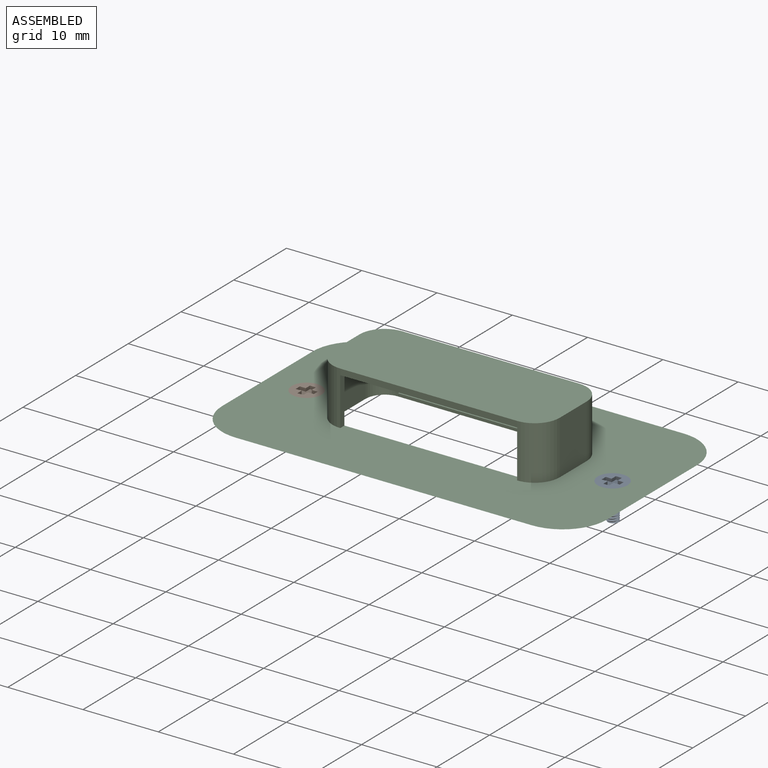
[diagram: assembled view]
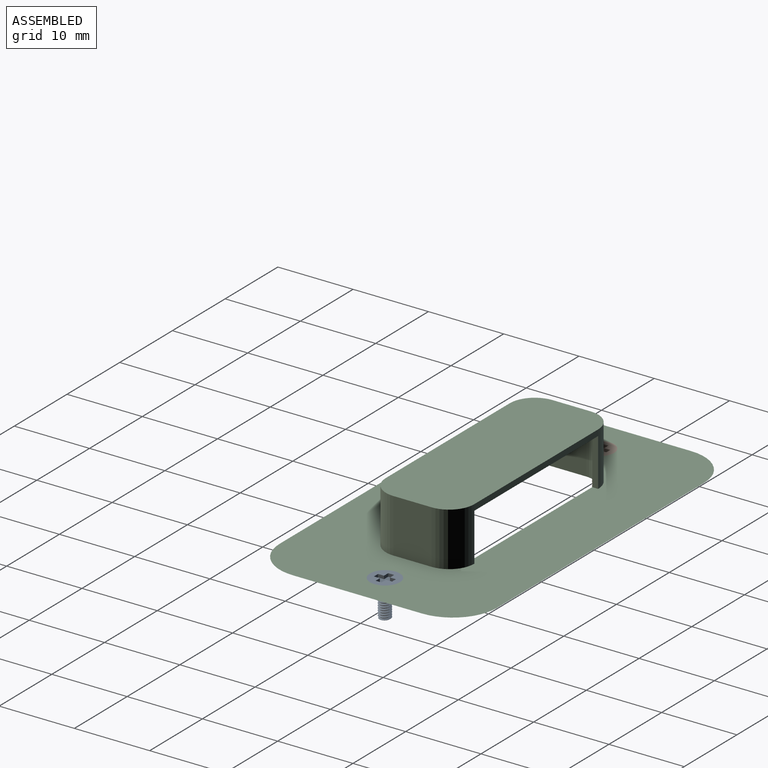
[diagram: assembled view, second angle]
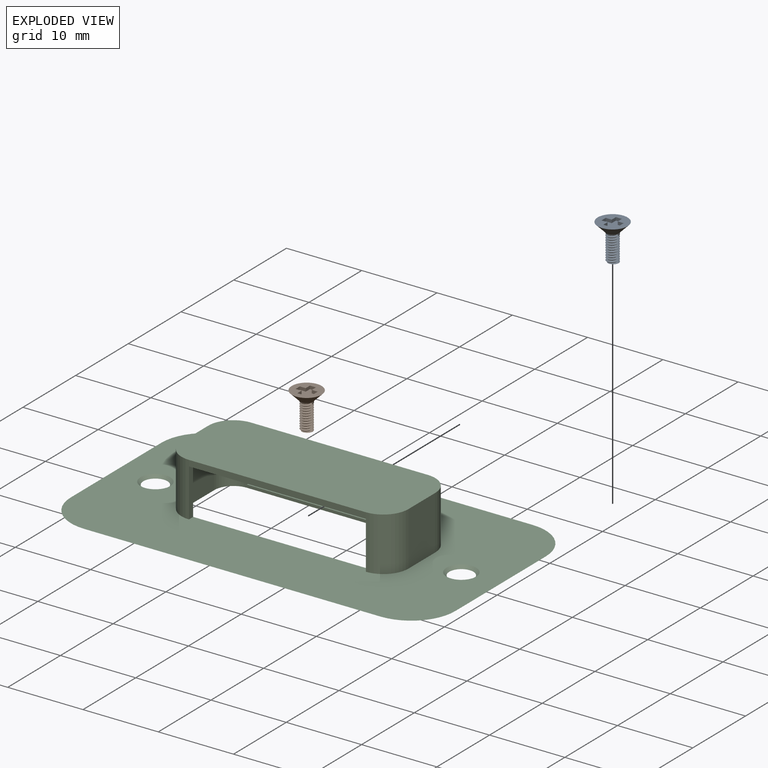
[diagram: exploded view]
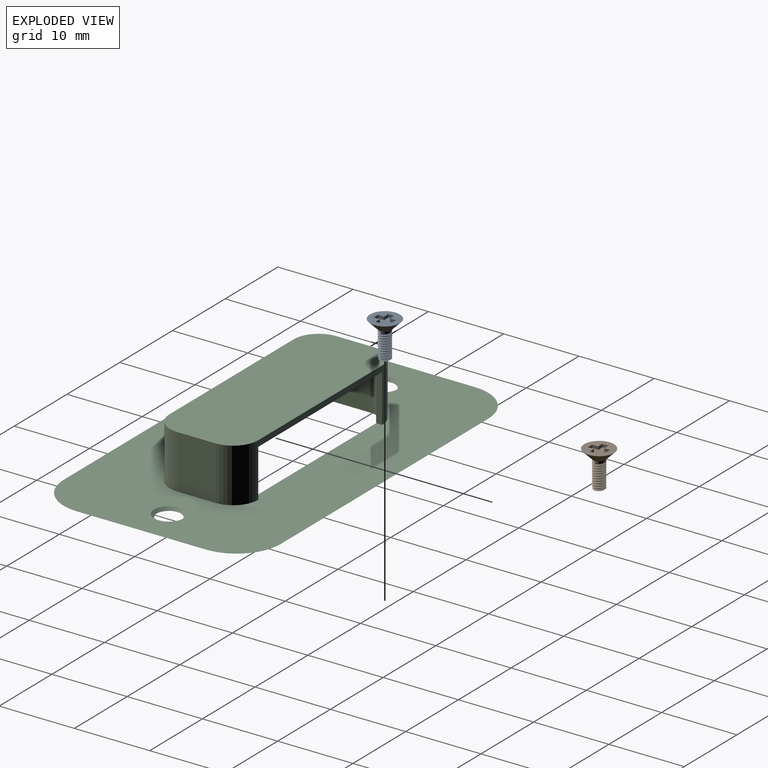
[diagram: exploded view, second angle]
ASSEMBLY  parts=3 mates=2
PART A: 21 faces, bbox 4.1x4.1x5.1 mm
  f0: plane 3.97x3.97mm, normal (0,0,1), area 9.2mm2, adj f1,f8,f9,f10,f11,f12,f13,f14
  f1: cone r=0.79mm half-angle=45deg, axis (0,0,1), area 14.7mm2, adj f0,f2
  f2: cylinder r=0.79mm len=1.59mm, axis (0,0,1), area 0.7mm2, adj f1,f5,f6
  f3: bspline ~3.72x1.83mm, area 12.7mm2, adj f4,f5,f6,f7
  f4: bspline ~3.57x1.83mm, area 12.1mm2, adj f3,f5,f7
  f5: plane 0.3x0.2mm, normal (0,-1,0), area 0mm2, adj f2,f3,f4,f6
  f6: bspline ~1.59x1.58mm, area 0mm2, adj f2,f3,f5
  f7: plane 1.55x1.55mm, normal (0,0,-1), area 1.5mm2, adj f3,f4
  f8: plane 0.79x0.42mm, normal (0,-1,0), area 0.3mm2, adj f0,f9,f19,f20
  f9: plane 0.79x0.42mm, normal (1,0,0), area 0.3mm2, adj f0,f8,f10,f20
  f10: plane 0.79x0.42mm, normal (0,-1,0), area 0.3mm2, adj f0,f9,f11,f20
  f11: plane 0.79x0.42mm, normal (1,0,0), area 0.3mm2, adj f0,f10,f12,f20
  f12: plane 0.79x0.42mm, normal (0,1,0), area 0.3mm2, adj f0,f11,f13,f20
  f13: plane 0.79x0.42mm, normal (1,0,0), area 0.3mm2, adj f0,f12,f14,f20
  f14: plane 0.79x0.42mm, normal (0,1,0), area 0.3mm2, adj f0,f13,f15,f20
  f15: plane 0.79x0.42mm, normal (-1,0,0), area 0.3mm2, adj f0,f14,f16,f20
  f16: plane 0.79x0.42mm, normal (0,1,0), area 0.3mm2, adj f0,f15,f17,f20
  f17: plane 0.79x0.42mm, normal (-1,0,0), area 0.3mm2, adj f0,f16,f18,f20
  f18: plane 0.79x0.42mm, normal (0,-1,0), area 0.3mm2, adj f0,f17,f19,f20
  f19: plane 0.79x0.42mm, normal (-1,0,0), area 0.3mm2, adj f0,f8,f18,f20
  f20: plane 2.38x2.38mm, normal (0,0,1), area 3.2mm2, adj f8,f9,f10,f11,f12,f13,f14,f15
PART B: same geometry as A
PART C: 34 faces, bbox 51.1x28.8x7.5 mm
  f0: plane 51.05x28.83mm, normal (0,0,1), area 1110.4mm2, adj f3,f9,f10,f11,f12,f13,f14,f15
  f1: plane 6.73x5.08mm, normal (1,0,0), area 34.2mm2, adj f2,f6,f7,f28
  f2: cylinder r=2.54mm len=6.73mm, axis (0,0,-1), area 26.9mm2, adj f1,f3,f7,f24,f28
  f3: plane 23.5x0.38mm, normal (0,-1,0), area 9mm2, adj f0,f2,f4,f7
  f4: cylinder r=2.54mm len=6.73mm, axis (0,0,-1), area 26.9mm2, adj f3,f5,f7,f22,f28
  f5: plane 6.73x5.08mm, normal (-1,0,0), area 34.2mm2, adj f4,f7,f8,f28
  f6: cylinder r=2.54mm len=6.73mm, axis (0,0,-1), area 26.9mm2, adj f1,f7,f9,f23,f28
  f7: plane 44.45x22.23mm, normal (0,0,-1), area 681.5mm2, adj f1,f2,f3,f4,f5,f6,f8,f9
  f8: cylinder r=2.54mm len=6.73mm, axis (0,0,-1), area 26.9mm2, adj f5,f7,f9,f18,f28
  f9: plane 23.5x0.38mm, normal (0,1,0), area 9mm2, adj f0,f6,f7,f8
  f10: plane 17.15x3.3mm, normal (0.11,0,-0.99), area 57mm2, adj f0,f7,f11,f12
  f11: cone r=2.54mm half-angle=83.4deg, axis (0,0,1), area 21.9mm2, adj f0,f7,f10,f13
  f12: cone r=2.54mm half-angle=83.4deg, axis (0,0,1), area 21.9mm2, adj f0,f7,f10,f14
  f13: plane 39.37x3.3mm, normal (0,-0.11,-0.99), area 130.9mm2, adj f0,f7,f11,f15
  f14: plane 39.37x3.3mm, normal (0,0.11,-0.99), area 130.9mm2, adj f0,f7,f12,f16
  f15: cone r=5.84mm half-angle=83.4deg, axis (0,0,1), area 21.9mm2, adj f0,f7,f13,f17
  f16: cone r=2.54mm half-angle=83.4deg, axis (0,0,1), area 21.9mm2, adj f0,f7,f14,f17
  f17: plane 17.15x3.3mm, normal (-0.11,0,-0.99), area 57mm2, adj f0,f7,f15,f16
  f18: plane 6.35x0.79mm, normal (-1,0,0), area 5mm2, adj f0,f8,f19,f28
  f19: cylinder r=3.33mm len=7.14mm, axis (0,0,-1), area 37.4mm2, adj f0,f18,f20,f29,f31
  f20: plane 7.14x5.08mm, normal (1,0,0), area 36.3mm2, adj f0,f19,f21,f31
  f21: cylinder r=3.33mm len=7.14mm, axis (0,0,-1), area 37.4mm2, adj f0,f20,f22,f30,f31
  f22: plane 6.35x0.79mm, normal (-1,0,0), area 5mm2, adj f0,f4,f21,f28
  f23: plane 6.35x0.79mm, normal (1,0,0), area 5mm2, adj f0,f6,f27,f28
  f24: plane 6.35x0.79mm, normal (1,0,0), area 5mm2, adj f0,f2,f25,f28
  f25: cylinder r=3.33mm len=7.14mm, axis (0,0,-1), area 37.4mm2, adj f0,f24,f26,f30,f31
  f26: plane 7.14x5.08mm, normal (-1,0,0), area 36.3mm2, adj f0,f25,f27,f31
  f27: cylinder r=3.33mm len=7.14mm, axis (0,0,-1), area 37.4mm2, adj f0,f23,f26,f29,f31
  f28: plane 28.58x11.75mm, normal (0,0,-1), area 322.1mm2, adj f1,f2,f4,f5,f6,f8,f18,f22
  f29: plane 23.5x0.79mm, normal (0,-1,0), area 18.6mm2, adj f19,f27,f28,f31
  f30: plane 23.5x0.79mm, normal (0,1,0), area 18.6mm2, adj f21,f25,f28,f31
  f31: plane 30.16x11.75mm, normal (0,0,1), area 344.8mm2, adj f19,f20,f21,f25,f26,f27,f29,f30
  f32: cone r=1.35mm half-angle=45deg, axis (0,0,1), area 6.1mm2, adj f0,f7
  f33: cone r=1.35mm half-angle=45deg, axis (0,0,1), area 6.1mm2, adj f0,f7
PLACE A t=(42.25,126.1,-187.87)mm
PLACE B t=(1.61,126.1,-187.87)mm
PLACE C t=(174.41,-83.78,-150.46)mm
MATE fastened B.f1 <-> C.f32  axis (0,0,1) through (-46.57,126.1,-144.03)mm
MATE fastened A.f1 <-> C.f33  axis (0,0,1) through (-5.93,126.1,-144.03)mm
